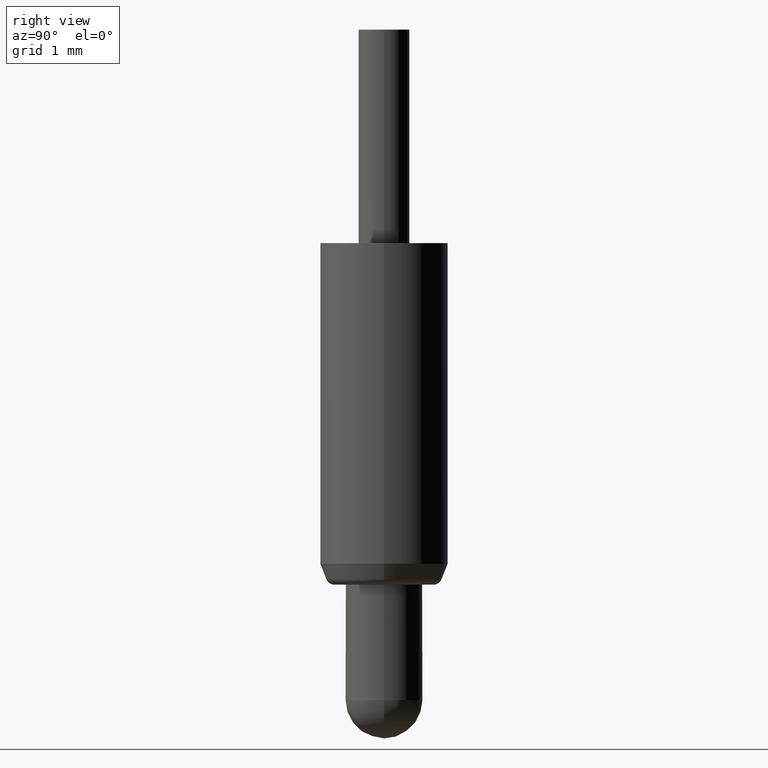
[diagram: clean part render]
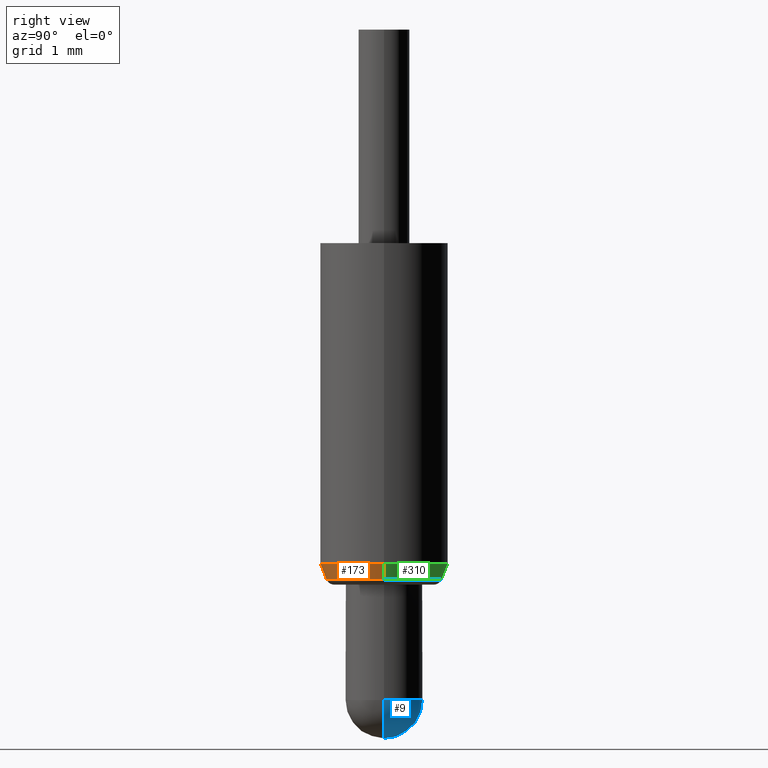
[diagram: same view with three faces highlighted in distinct colors, each labeled with its STEP entity id]
A machine part, right view with three faces highlighted in distinct colors.
Their STEP definitions:

[orange] entity #173 — the highlighted conical surface has half-angle 21.674 deg.
#5 = ORIENTED_EDGE ( 'NONE', *, *, #316, .T. ) ;
#20 = LINE ( 'NONE', #165, #36 ) ;
#32 = DIRECTION ( 'NONE',  ( -0.3693259380318421000, 4.522938278527891600E-017, 0.9292999254798742800 ) ) ;
#36 = VECTOR ( 'NONE', #32, 1000.000000000000100 ) ;
#53 = DIRECTION ( 'NONE',  ( 0.3693259380318421000, 0.0000000000000000000, 0.9292999254798742800 ) ) ;
#56 = DIRECTION ( 'NONE',  ( -0.0000000000000000000, -0.0000000000000000000, 1.000000000000000000 ) ) ;
#64 = AXIS2_PLACEMENT_3D ( 'NONE', #198, #56, #168 ) ;
#72 = AXIS2_PLACEMENT_3D ( 'NONE', #250, #388, #285 ) ;
#91 = AXIS2_PLACEMENT_3D ( 'NONE', #417, #389, #186 ) ;
#131 = CARTESIAN_POINT ( 'NONE',  ( -0.7500000000000000000, 9.184850993605150900E-017, 2.043174604063049000 ) ) ;
#138 = ORIENTED_EDGE ( 'NONE', *, *, #289, .T. ) ;
#147 = CARTESIAN_POINT ( 'NONE',  ( 0.7500000000000000000, 0.0000000000000000000, 2.043174604063049000 ) ) ;
#165 = CARTESIAN_POINT ( 'NONE',  ( -0.6533566168589427500, 8.001310895380479100E-017, 1.799999999999999600 ) ) ;
#168 = DIRECTION ( 'NONE',  ( 1.000000000000000000, 0.0000000000000000000, 0.0000000000000000000 ) ) ;
#173 = ADVANCED_FACE ( 'NONE', ( #197 ), #206, .T. ) ;
#186 = DIRECTION ( 'NONE',  ( -1.000000000000000000, 0.0000000000000000000, 0.0000000000000000000 ) ) ;
#197 = FACE_OUTER_BOUND ( 'NONE', #203, .T. ) ;
#198 = CARTESIAN_POINT ( 'NONE',  ( 0.0000000000000000000, 0.0000000000000000000, 2.043174604063049000 ) ) ;
#199 = CARTESIAN_POINT ( 'NONE',  ( -0.6784211071426866600, 8.746556683484048800E-017, 1.863067406196815500 ) ) ;
#203 = EDGE_LOOP ( 'NONE', ( #399, #138, #5, #329 ) ) ;
#206 = CONICAL_SURFACE ( 'NONE', #72, 0.6533566168589427500, 0.3782835722240472400 ) ;
#214 = CIRCLE ( 'NONE', #64, 0.7500000000000000000 ) ;
#227 = CARTESIAN_POINT ( 'NONE',  ( 0.6784211071426866600, 0.0000000000000000000, 1.863067406196815500 ) ) ;
#232 = CIRCLE ( 'NONE', #91, 0.6784211071426866600 ) ;
#242 = LINE ( 'NONE', #352, #400 ) ;
#250 = CARTESIAN_POINT ( 'NONE',  ( 0.0000000000000000000, 0.0000000000000000000, 1.799999999999999600 ) ) ;
#266 = VERTEX_POINT ( 'NONE', #147 ) ;
#285 = DIRECTION ( 'NONE',  ( 1.000000000000000000, 0.0000000000000000000, 0.0000000000000000000 ) ) ;
#289 = EDGE_CURVE ( 'NONE', #372, #309, #232, .T. ) ;
#309 = VERTEX_POINT ( 'NONE', #227 ) ;
#316 = EDGE_CURVE ( 'NONE', #309, #266, #242, .T. ) ;
#329 = ORIENTED_EDGE ( 'NONE', *, *, #361, .F. ) ;
#352 = CARTESIAN_POINT ( 'NONE',  ( 0.6533566168589427500, 0.0000000000000000000, 1.799999999999999600 ) ) ;
#361 = EDGE_CURVE ( 'NONE', #408, #266, #214, .T. ) ;
#372 = VERTEX_POINT ( 'NONE', #199 ) ;
#388 = DIRECTION ( 'NONE',  ( -0.0000000000000000000, -0.0000000000000000000, 1.000000000000000000 ) ) ;
#389 = DIRECTION ( 'NONE',  ( -0.0000000000000000000, -0.0000000000000000000, 1.000000000000000000 ) ) ;
#399 = ORIENTED_EDGE ( 'NONE', *, *, #410, .F. ) ;
#400 = VECTOR ( 'NONE', #53, 1000.000000000000100 ) ;
#408 = VERTEX_POINT ( 'NONE', #131 ) ;
#410 = EDGE_CURVE ( 'NONE', #372, #408, #20, .T. ) ;
#417 = CARTESIAN_POINT ( 'NONE',  ( 0.0000000000000000000, 0.0000000000000000000, 1.863067406196815500 ) ) ;

[blue] entity #9 — the highlighted spherical surface has radius 0.45 mm.
#3 = VERTEX_POINT ( 'NONE', #106 ) ;
#6 = ORIENTED_EDGE ( 'NONE', *, *, #15, .F. ) ;
#7 = EDGE_LOOP ( 'NONE', ( #6, #317, #136 ) ) ;
#9 = ADVANCED_FACE ( 'NONE', ( #240 ), #392, .T. ) ;
#14 = DIRECTION ( 'NONE',  ( -0.0000000000000000000, 1.000000000000000000, 0.0000000000000000000 ) ) ;
#15 = EDGE_CURVE ( 'NONE', #144, #170, #217, .T. ) ;
#49 = CARTESIAN_POINT ( 'NONE',  ( 0.0000000000000000000, 0.0000000000000000000, 0.4500000000000007300 ) ) ;
#74 = AXIS2_PLACEMENT_3D ( 'NONE', #109, #14, #145 ) ;
#106 = CARTESIAN_POINT ( 'NONE',  ( -0.4499999999999999000, 5.510910596163087700E-017, 0.4500000000000007300 ) ) ;
#109 = CARTESIAN_POINT ( 'NONE',  ( 0.0000000000000000000, 0.0000000000000000000, 0.4500000000000007300 ) ) ;
#113 = CARTESIAN_POINT ( 'NONE',  ( 0.4499999999999999000, 0.0000000000000000000, 0.4500000000000007300 ) ) ;
#136 = ORIENTED_EDGE ( 'NONE', *, *, #307, .F. ) ;
#140 = AXIS2_PLACEMENT_3D ( 'NONE', #49, #225, #281 ) ;
#144 = VERTEX_POINT ( 'NONE', #420 ) ;
#145 = DIRECTION ( 'NONE',  ( 1.000000000000000000, 0.0000000000000000000, 0.0000000000000000000 ) ) ;
#149 = CARTESIAN_POINT ( 'NONE',  ( 0.0000000000000000000, 0.0000000000000000000, 0.4500000000000007300 ) ) ;
#157 = EDGE_CURVE ( 'NONE', #144, #3, #405, .T. ) ;
#170 = VERTEX_POINT ( 'NONE', #113 ) ;
#182 = DIRECTION ( 'NONE',  ( 0.0000000000000000000, 0.0000000000000000000, -1.000000000000000000 ) ) ;
#185 = AXIS2_PLACEMENT_3D ( 'NONE', #149, #326, #354 ) ;
#217 = CIRCLE ( 'NONE', #334, 0.4500000000000000100 ) ;
#225 = DIRECTION ( 'NONE',  ( -0.0000000000000000000, -0.0000000000000000000, 1.000000000000000000 ) ) ;
#240 = FACE_OUTER_BOUND ( 'NONE', #7, .T. ) ;
#281 = DIRECTION ( 'NONE',  ( 1.000000000000000000, 0.0000000000000000000, 0.0000000000000000000 ) ) ;
#307 = EDGE_CURVE ( 'NONE', #170, #3, #349, .T. ) ;
#312 = CARTESIAN_POINT ( 'NONE',  ( 0.0000000000000000000, 0.0000000000000000000, 0.4500000000000007300 ) ) ;
#317 = ORIENTED_EDGE ( 'NONE', *, *, #157, .T. ) ;
#326 = DIRECTION ( 'NONE',  ( 1.224646799147353200E-016, 1.000000000000000000, 0.0000000000000000000 ) ) ;
#334 = AXIS2_PLACEMENT_3D ( 'NONE', #312, #379, #182 ) ;
#349 = CIRCLE ( 'NONE', #140, 0.4499999999999999000 ) ;
#354 = DIRECTION ( 'NONE',  ( -1.000000000000000000, 1.224646799147353000E-016, 0.0000000000000000000 ) ) ;
#379 = DIRECTION ( 'NONE',  ( 0.0000000000000000000, -1.000000000000000000, 0.0000000000000000000 ) ) ;
#392 = SPHERICAL_SURFACE ( 'NONE', #74, 0.4500000000000000100 ) ;
#405 = CIRCLE ( 'NONE', #185, 0.4500000000000000100 ) ;
#420 = CARTESIAN_POINT ( 'NONE',  ( 2.755455298081544500E-017, 0.0000000000000000000, 7.589415207398531000E-016 ) ) ;

[green] entity #310 — the highlighted conical surface has half-angle 21.674 deg.
#2 = CIRCLE ( 'NONE', #178, 0.6784211071426866600 ) ;
#20 = LINE ( 'NONE', #165, #36 ) ;
#25 = AXIS2_PLACEMENT_3D ( 'NONE', #189, #221, #47 ) ;
#32 = DIRECTION ( 'NONE',  ( -0.3693259380318421000, 4.522938278527891600E-017, 0.9292999254798742800 ) ) ;
#36 = VECTOR ( 'NONE', #32, 1000.000000000000100 ) ;
#47 = DIRECTION ( 'NONE',  ( 1.000000000000000000, 0.0000000000000000000, 0.0000000000000000000 ) ) ;
#48 = DIRECTION ( 'NONE',  ( -0.0000000000000000000, -0.0000000000000000000, 1.000000000000000000 ) ) ;
#53 = DIRECTION ( 'NONE',  ( 0.3693259380318421000, 0.0000000000000000000, 0.9292999254798742800 ) ) ;
#58 = DIRECTION ( 'NONE',  ( -0.0000000000000000000, -0.0000000000000000000, 1.000000000000000000 ) ) ;
#78 = DIRECTION ( 'NONE',  ( 1.000000000000000000, 0.0000000000000000000, 0.0000000000000000000 ) ) ;
#101 = AXIS2_PLACEMENT_3D ( 'NONE', #320, #48, #78 ) ;
#118 = EDGE_CURVE ( 'NONE', #266, #408, #341, .T. ) ;
#131 = CARTESIAN_POINT ( 'NONE',  ( -0.7500000000000000000, 9.184850993605150900E-017, 2.043174604063049000 ) ) ;
#147 = CARTESIAN_POINT ( 'NONE',  ( 0.7500000000000000000, 0.0000000000000000000, 2.043174604063049000 ) ) ;
#165 = CARTESIAN_POINT ( 'NONE',  ( -0.6533566168589427500, 8.001310895380479100E-017, 1.799999999999999600 ) ) ;
#171 = ORIENTED_EDGE ( 'NONE', *, *, #410, .T. ) ;
#176 = FACE_OUTER_BOUND ( 'NONE', #413, .T. ) ;
#178 = AXIS2_PLACEMENT_3D ( 'NONE', #427, #58, #295 ) ;
#189 = CARTESIAN_POINT ( 'NONE',  ( 0.0000000000000000000, 0.0000000000000000000, 1.799999999999999600 ) ) ;
#199 = CARTESIAN_POINT ( 'NONE',  ( -0.6784211071426866600, 8.746556683484048800E-017, 1.863067406196815500 ) ) ;
#212 = EDGE_CURVE ( 'NONE', #309, #372, #2, .T. ) ;
#221 = DIRECTION ( 'NONE',  ( -0.0000000000000000000, -0.0000000000000000000, 1.000000000000000000 ) ) ;
#227 = CARTESIAN_POINT ( 'NONE',  ( 0.6784211071426866600, 0.0000000000000000000, 1.863067406196815500 ) ) ;
#242 = LINE ( 'NONE', #352, #400 ) ;
#258 = ORIENTED_EDGE ( 'NONE', *, *, #212, .T. ) ;
#262 = ORIENTED_EDGE ( 'NONE', *, *, #316, .F. ) ;
#266 = VERTEX_POINT ( 'NONE', #147 ) ;
#295 = DIRECTION ( 'NONE',  ( -1.000000000000000000, 0.0000000000000000000, 0.0000000000000000000 ) ) ;
#305 = ORIENTED_EDGE ( 'NONE', *, *, #118, .F. ) ;
#309 = VERTEX_POINT ( 'NONE', #227 ) ;
#310 = ADVANCED_FACE ( 'NONE', ( #176 ), #415, .T. ) ;
#316 = EDGE_CURVE ( 'NONE', #309, #266, #242, .T. ) ;
#320 = CARTESIAN_POINT ( 'NONE',  ( 0.0000000000000000000, 0.0000000000000000000, 2.043174604063049000 ) ) ;
#341 = CIRCLE ( 'NONE', #101, 0.7500000000000000000 ) ;
#352 = CARTESIAN_POINT ( 'NONE',  ( 0.6533566168589427500, 0.0000000000000000000, 1.799999999999999600 ) ) ;
#372 = VERTEX_POINT ( 'NONE', #199 ) ;
#400 = VECTOR ( 'NONE', #53, 1000.000000000000100 ) ;
#408 = VERTEX_POINT ( 'NONE', #131 ) ;
#410 = EDGE_CURVE ( 'NONE', #372, #408, #20, .T. ) ;
#413 = EDGE_LOOP ( 'NONE', ( #258, #171, #305, #262 ) ) ;
#415 = CONICAL_SURFACE ( 'NONE', #25, 0.6533566168589427500, 0.3782835722240472400 ) ;
#427 = CARTESIAN_POINT ( 'NONE',  ( 0.0000000000000000000, 0.0000000000000000000, 1.863067406196815500 ) ) ;